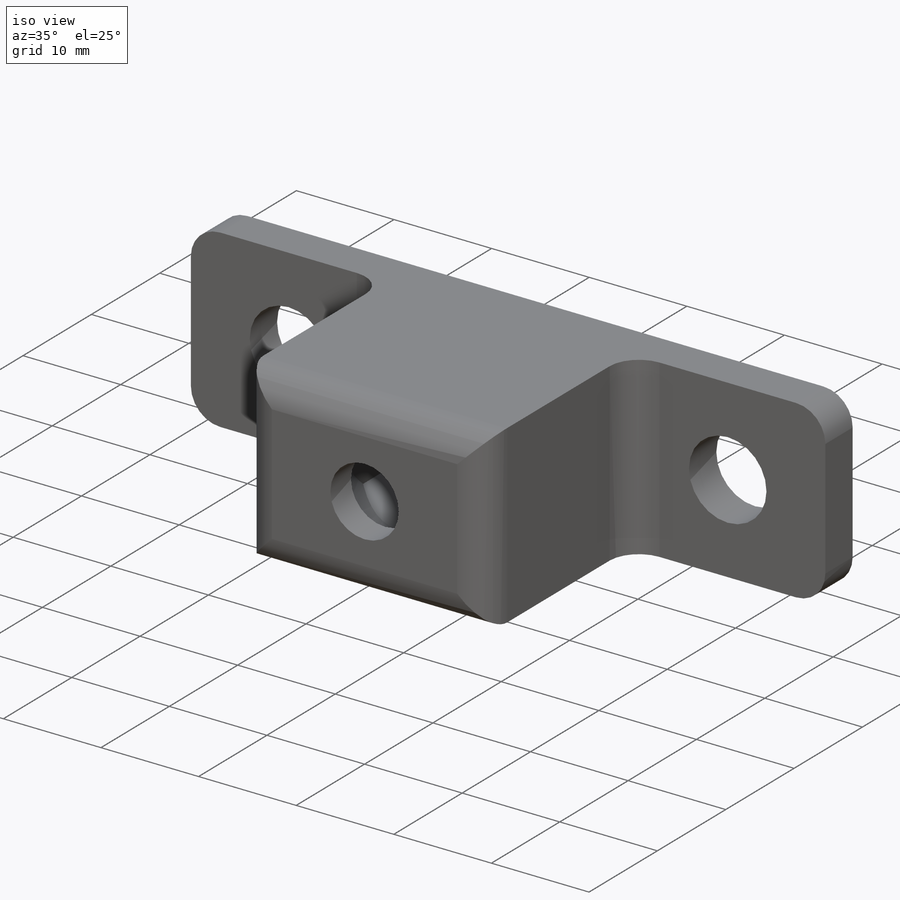
[diagram: iso view]
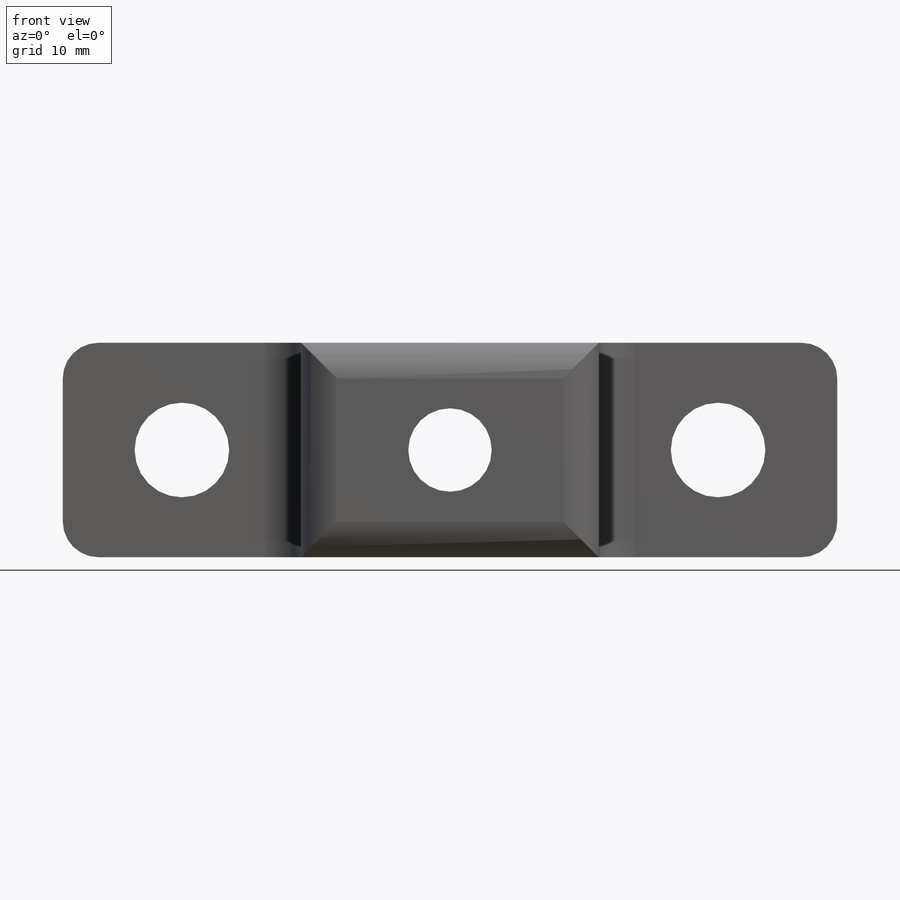
[diagram: front view]
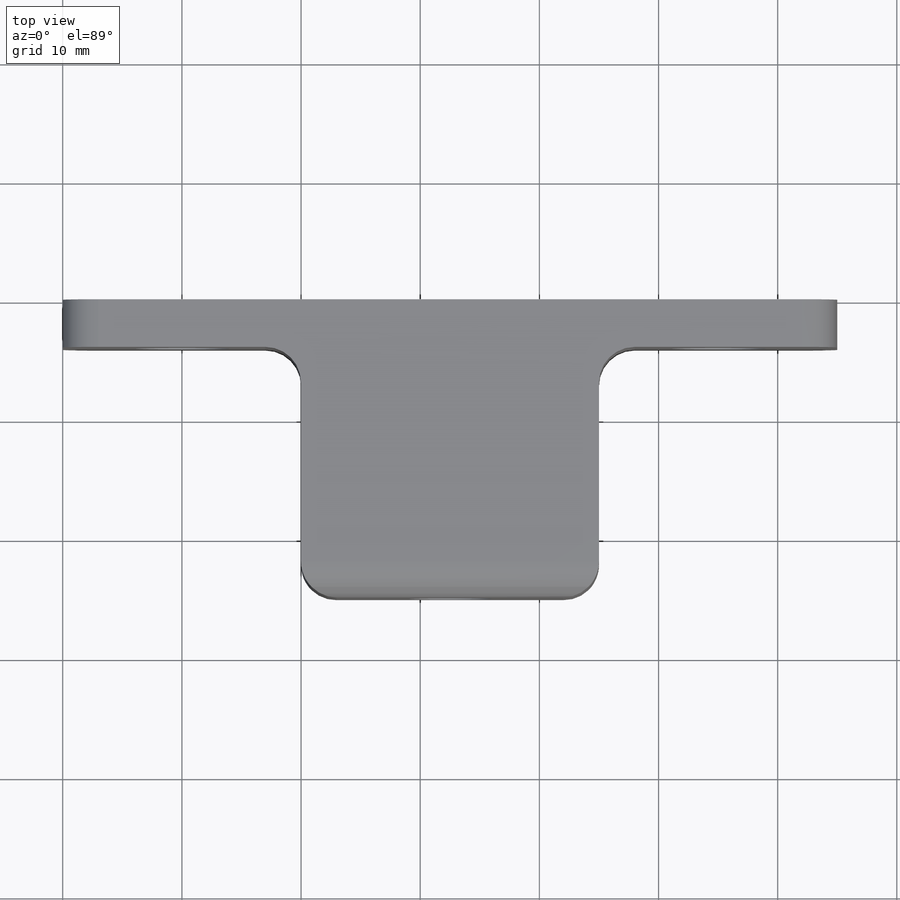
[diagram: top view]
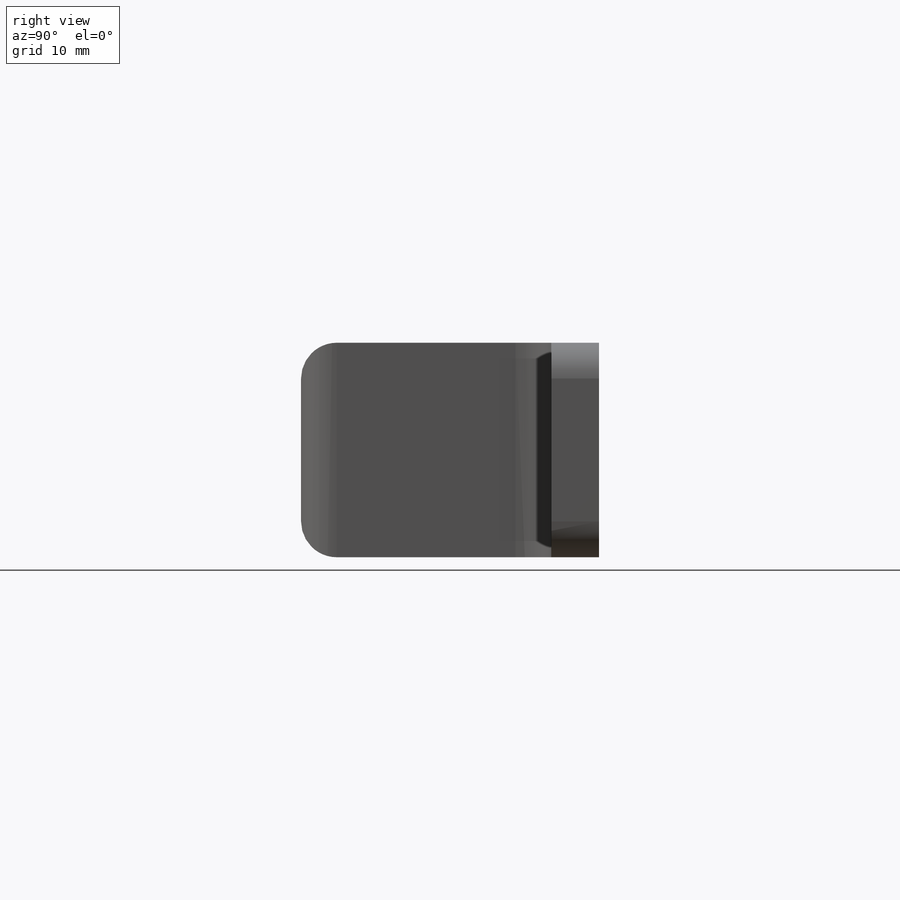
[diagram: right view]
SOLIDWORKS PART (.sldprt)
format: sldprt  version: not decoded by parser v0  size: 295,424 bytes
history: native  units: mm
features: sketch x5, fillet x3, cut_extrude x3, extrude x2, chamfer x2, material x1 (+13 scaffold rows collapsed)
feature tree (29):
  scaffold x13  (default folders/planes/origin — collapsed)
  material  "Material <not specified>"
  sketch  "Sketch1"  dims[c1.D1=7.0mm c1.D2=25.0mm c1.D3=25.0mm c2.D2=25.0mm c2.D3=18.0mm]
  extrude  "Boss-Extrude1"  Depth=25mm
  sketch  "Sketch2"  dims[D1=7.9375mm D2=20.0mm]
  extrude  "Boss-Extrude2"  Depth=4mm
  fillet  "Fillet2"  Radius=3mm
  fillet  "Fillet4"  Radius=3mm
  sketch  "Sketch3"  dims[D1=~5.865622mm]
  cut_extrude  "Cut-Extrude1"  Depth=3mm
  sketch  "Sketch5"  dims[c1.D1=3.0mm c1.D2=3.0mm c1.D3=3.0mm c1.D4=3.0mm c1.D5=3.0mm c2.D2=3.0mm c2.D6=3.0mm]
  cut_extrude  "Cut-Extrude2"  Depth=3mm
  chamfer  "Chamfer1"  Distance=1.25mm Angle=75deg
  chamfer  "Chamfer2"  Distance=4.5mm Angle=60deg
  fillet  "Fillet5"  Radius=5.54mm
  sketch  "Sketch7"  dims[D1=3.0mm]
  cut_extrude  "Cut-Extrude3"  Depth=6mm
decode coverage: 15 of 15 modeling features carry decoded parameters
note: ~ marks probable driven/reference dimensions
note: suppression state not decoded; provenance and decode notes live in map.json
